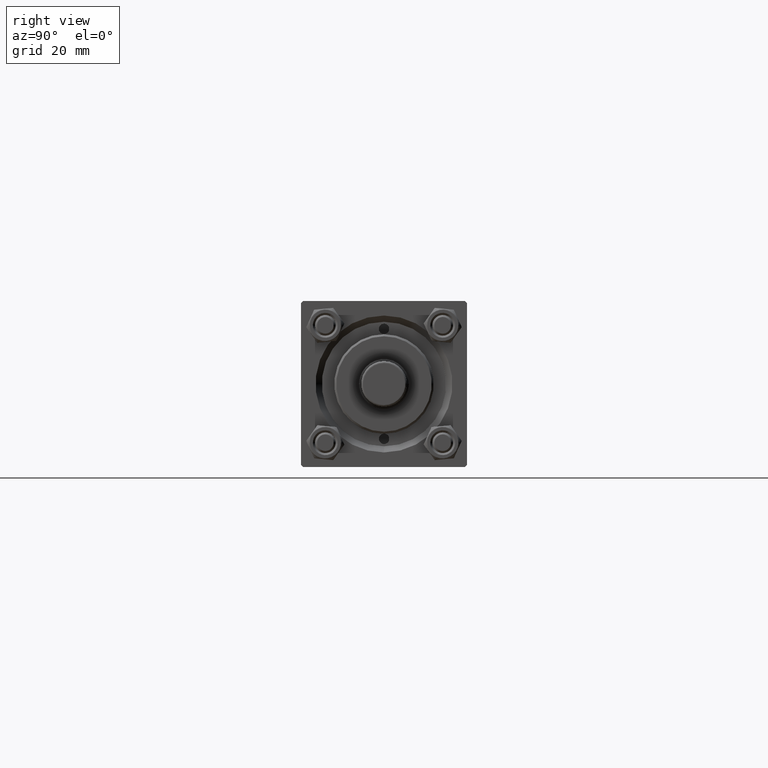
[diagram: clean part render]
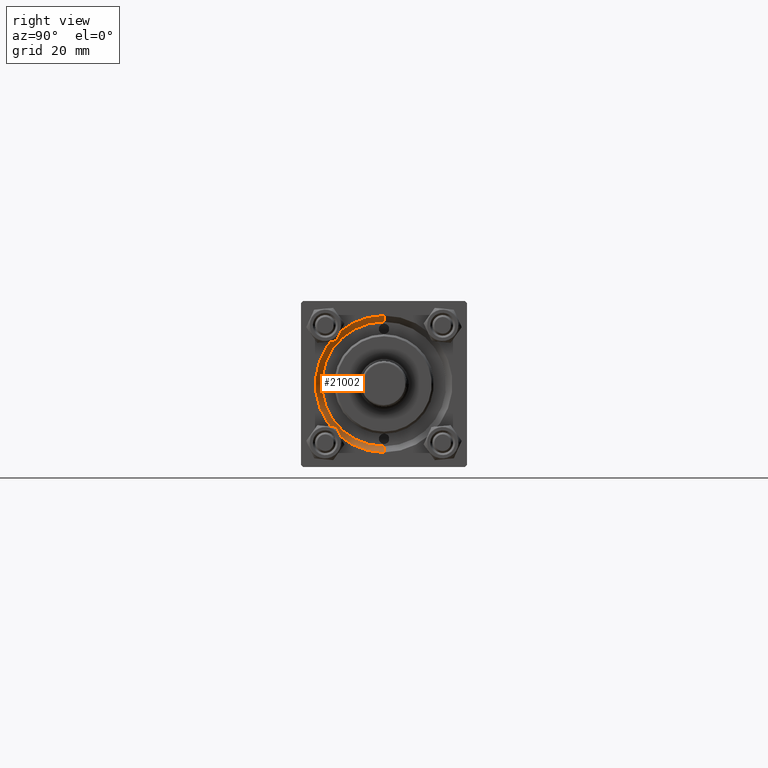
[diagram: same view with one face highlighted and labeled with its STEP entity id]
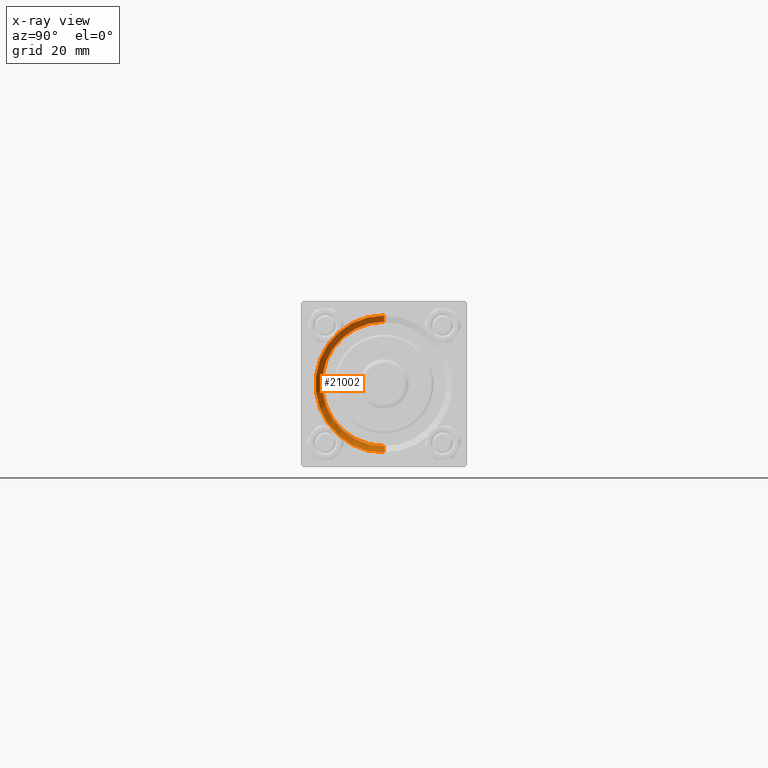
[diagram: x-ray of the same camera — body ghosted, the highlighted face saturated]
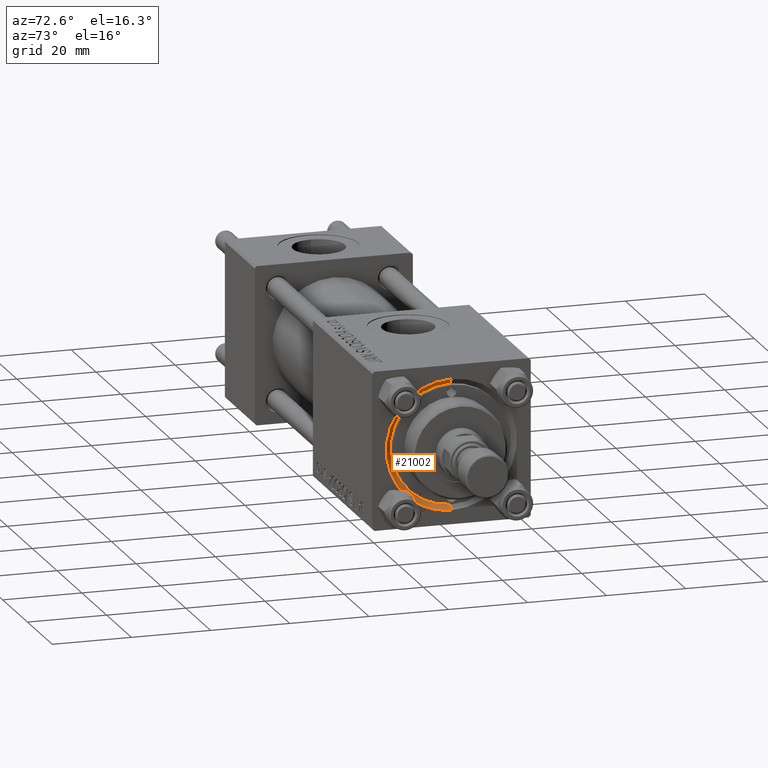
[diagram: same view with one face highlighted and labeled with its STEP entity id]
A machine part, right view. The second image highlights one B-rep face of the part: STEP entity #21002.
The next image is the same camera in x-ray: the body ghosted, the highlighted face saturated — about 0% of this face is hidden behind the body in this view.
A second angle (auxiliary view) of the same face is appended — the face is thin or edge-on in the first view.
In plain terms, the highlighted conical surface has half-angle 45 deg.
Its self-contained STEP definition (entity closure, byte-faithful):
#173 = DIRECTION ( 'NONE',  ( 1.000000000000000000, 0.000000000000000000, 0.000000000000000000 ) ) ;
#2621 = AXIS2_PLACEMENT_3D ( 'NONE', #14274, #26230, #29814 ) ;
#3058 = ORIENTED_EDGE ( 'NONE', *, *, #18670, .T. ) ;
#5522 = VERTEX_POINT ( 'NONE', #18841 ) ;
#6676 = EDGE_LOOP ( 'NONE', ( #18250, #3058, #33975, #37033 ) ) ;
#7099 = FACE_OUTER_BOUND ( 'NONE', #6676, .T. ) ;
#7515 = EDGE_CURVE ( 'NONE', #42918, #5522, #24559, .T. ) ;
#9460 = DIRECTION ( 'NONE',  ( 0.7071067811865474617, 0.000000000000000000, -0.7071067811865474617 ) ) ;
#11915 = AXIS2_PLACEMENT_3D ( 'NONE', #33854, #34593, #33598 ) ;
#12661 = CARTESIAN_POINT ( 'NONE',  ( 117.5000000000000000, 1.836970198721029589E-15, 15.00000000000000000 ) ) ;
#13145 = EDGE_CURVE ( 'NONE', #47795, #48668, #19716, .T. ) ;
#13546 = EDGE_CURVE ( 'NONE', #48668, #42918, #21403, .T. ) ;
#13805 = CARTESIAN_POINT ( 'NONE',  ( 119.0000000000000142, 0.000000000000000000, -16.50000000000001421 ) ) ;
#14274 = CARTESIAN_POINT ( 'NONE',  ( 119.0000000000000142, 0.000000000000000000, 0.000000000000000000 ) ) ;
#18250 = ORIENTED_EDGE ( 'NONE', *, *, #13145, .F. ) ;
#18670 = EDGE_CURVE ( 'NONE', #47795, #5522, #24778, .T. ) ;
#18841 = CARTESIAN_POINT ( 'NONE',  ( 119.0000000000000142, 2.020667218593134678E-15, 16.50000000000001421 ) ) ;
#19716 = CIRCLE ( 'NONE', #22994, 15.00000000000000000 ) ;
#21002 = ADVANCED_FACE ( 'NONE', ( #7099 ), #33083, .F. ) ;
#21403 = LINE ( 'NONE', #28060, #33603 ) ;
#22994 = AXIS2_PLACEMENT_3D ( 'NONE', #26678, #173, #42233 ) ;
#24559 = CIRCLE ( 'NONE', #2621, 16.50000000000001421 ) ;
#24778 = LINE ( 'NONE', #33188, #46812 ) ;
#26230 = DIRECTION ( 'NONE',  ( -1.000000000000000000, -0.000000000000000000, -0.000000000000000000 ) ) ;
#26678 = CARTESIAN_POINT ( 'NONE',  ( 117.5000000000000000, 0.000000000000000000, 0.000000000000000000 ) ) ;
#28060 = CARTESIAN_POINT ( 'NONE',  ( 117.5000000000000000, 0.000000000000000000, -15.00000000000000000 ) ) ;
#29814 = DIRECTION ( 'NONE',  ( 0.000000000000000000, 0.000000000000000000, 1.000000000000000000 ) ) ;
#33083 = CONICAL_SURFACE ( 'NONE', #11915, 15.00000000000000000, 0.7853981633974482790 ) ;
#33188 = CARTESIAN_POINT ( 'NONE',  ( 117.5000000000000000, 1.836970198721029589E-15, 15.00000000000000000 ) ) ;
#33598 = DIRECTION ( 'NONE',  ( 0.000000000000000000, 0.000000000000000000, -1.000000000000000000 ) ) ;
#33603 = VECTOR ( 'NONE', #9460, 1000.000000000000114 ) ;
#33854 = CARTESIAN_POINT ( 'NONE',  ( 117.5000000000000000, 0.000000000000000000, 0.000000000000000000 ) ) ;
#33975 = ORIENTED_EDGE ( 'NONE', *, *, #7515, .F. ) ;
#34593 = DIRECTION ( 'NONE',  ( 1.000000000000000000, 0.000000000000000000, 0.000000000000000000 ) ) ;
#37033 = ORIENTED_EDGE ( 'NONE', *, *, #13546, .F. ) ;
#37811 = CARTESIAN_POINT ( 'NONE',  ( 117.5000000000000000, 0.000000000000000000, -15.00000000000000000 ) ) ;
#42233 = DIRECTION ( 'NONE',  ( 0.000000000000000000, 0.000000000000000000, 1.000000000000000000 ) ) ;
#42918 = VERTEX_POINT ( 'NONE', #13805 ) ;
#46812 = VECTOR ( 'NONE', #48239, 1000.000000000000114 ) ;
#47795 = VERTEX_POINT ( 'NONE', #12661 ) ;
#48239 = DIRECTION ( 'NONE',  ( 0.7071067811865474617, 8.659560562354932858E-17, 0.7071067811865474617 ) ) ;
#48668 = VERTEX_POINT ( 'NONE', #37811 ) ;